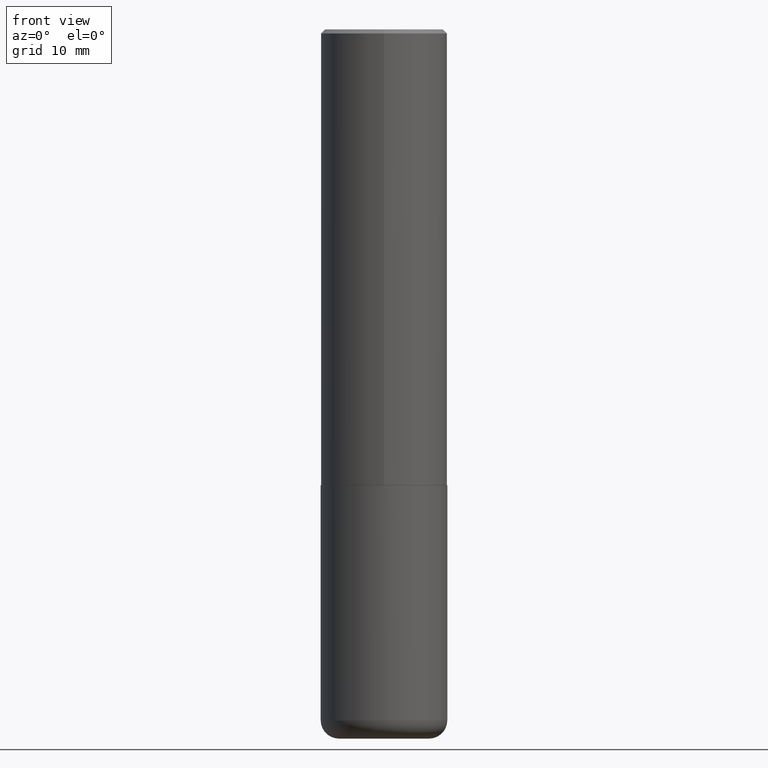
[diagram: clean part render]
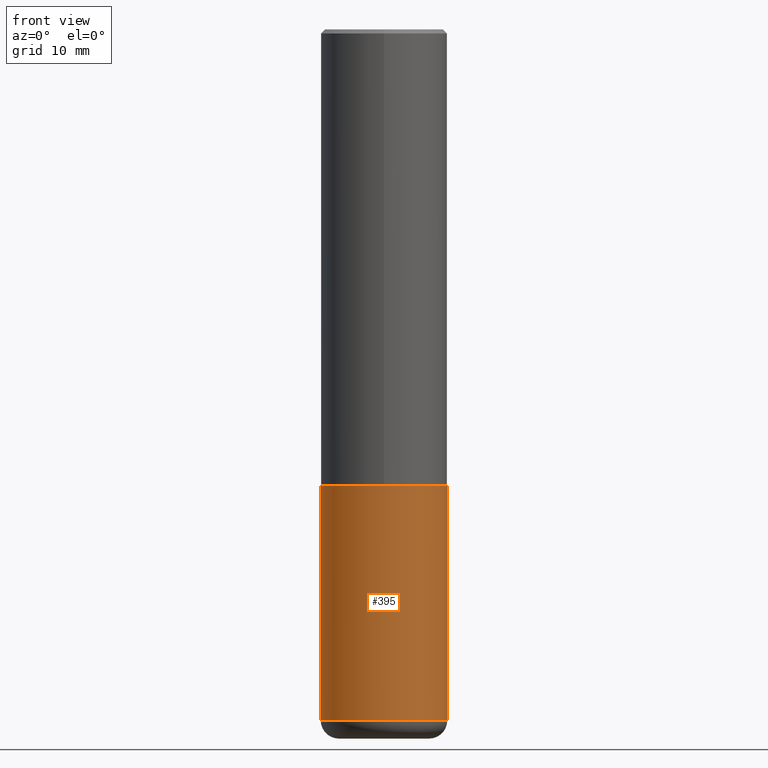
[diagram: same view with one face highlighted and labeled with its STEP entity id]
A machine part, front view. The second image highlights one B-rep face of the part: STEP entity #395.
In plain terms, the highlighted cylindrical surface (partial cylindrical patch) has radius 7.9375 mm, axis along (-0, 0, 1).
Its self-contained STEP definition (entity closure, byte-faithful):
#3 = CIRCLE ( 'NONE', #415, 0.3125000000000000000 ) ;
#7 = CARTESIAN_POINT ( 'NONE',  ( 0.3124999999999998890, -1.408812720223208442E-14, -3.410000000000000142 ) ) ;
#11 = AXIS2_PLACEMENT_3D ( 'NONE', #288, #283, #92 ) ;
#19 = FACE_OUTER_BOUND ( 'NONE', #335, .T. ) ;
#24 = VERTEX_POINT ( 'NONE', #235 ) ;
#69 = DIRECTION ( 'NONE',  ( 1.000000000000000000, -6.982962677686265133E-15, 0.000000000000000000 ) ) ;
#71 = CARTESIAN_POINT ( 'NONE',  ( 8.339048629091315302E-29, -1.190595136545512608E-14, -3.410000000000000142 ) ) ;
#79 = ORIENTED_EDGE ( 'NONE', *, *, #418, .F. ) ;
#82 = CIRCLE ( 'NONE', #317, 0.3125000000000000000 ) ;
#84 = CARTESIAN_POINT ( 'NONE',  ( -0.3125000000000000000, -7.660446139675788393E-15, -2.249999999999999556 ) ) ;
#92 = DIRECTION ( 'NONE',  ( 1.000000000000000000, -6.982962677686266711E-15, 4.876176775795936353E-29 ) ) ;
#114 = VERTEX_POINT ( 'NONE', #7 ) ;
#115 = EDGE_CURVE ( 'NONE', #114, #24, #261, .T. ) ;
#128 = CARTESIAN_POINT ( 'NONE',  ( -0.3125000000000000000, 2.220446049250313081E-15, -1.537167215704658232E-29 ) ) ;
#161 = EDGE_CURVE ( 'NONE', #344, #24, #82, .T. ) ;
#162 = VECTOR ( 'NONE', #343, 39.37007874015748143 ) ;
#176 = EDGE_CURVE ( 'NONE', #401, #114, #3, .T. ) ;
#202 = DIRECTION ( 'NONE',  ( -2.445468806185136597E-29, 3.491481338843145583E-15, 1.000000000000000000 ) ) ;
#208 = DIRECTION ( 'NONE',  ( -2.445468806185136877E-29, 3.491481338843145188E-15, 1.000000000000000000 ) ) ;
#229 = LINE ( 'NONE', #128, #162 ) ;
#235 = CARTESIAN_POINT ( 'NONE',  ( 0.3125000000000000000, -1.003800884917403364E-14, -2.249999999999999556 ) ) ;
#243 = ORIENTED_EDGE ( 'NONE', *, *, #161, .F. ) ;
#261 = LINE ( 'NONE', #391, #328 ) ;
#270 = DIRECTION ( 'NONE',  ( -2.445468806185136597E-29, 3.491481338843145583E-15, 1.000000000000000000 ) ) ;
#283 = DIRECTION ( 'NONE',  ( -2.445468806185136597E-29, 3.491481338843145583E-15, 1.000000000000000000 ) ) ;
#288 = CARTESIAN_POINT ( 'NONE',  ( 0.000000000000000000, 0.000000000000000000, 0.000000000000000000 ) ) ;
#307 = ORIENTED_EDGE ( 'NONE', *, *, #115, .T. ) ;
#317 = AXIS2_PLACEMENT_3D ( 'NONE', #351, #270, #69 ) ;
#320 = CARTESIAN_POINT ( 'NONE',  ( -0.3124999999999998890, -9.685505316204812997E-15, -3.410000000000000142 ) ) ;
#323 = DIRECTION ( 'NONE',  ( 1.000000000000000000, -6.982962677686269077E-15, 0.000000000000000000 ) ) ;
#328 = VECTOR ( 'NONE', #208, 39.37007874015748143 ) ;
#335 = EDGE_LOOP ( 'NONE', ( #79, #359, #307, #243 ) ) ;
#343 = DIRECTION ( 'NONE',  ( -2.445468806185136877E-29, 3.491481338843145188E-15, 1.000000000000000000 ) ) ;
#344 = VERTEX_POINT ( 'NONE', #84 ) ;
#351 = CARTESIAN_POINT ( 'NONE',  ( 5.502304813916556222E-29, -7.855833012397075293E-15, -2.249999999999999556 ) ) ;
#359 = ORIENTED_EDGE ( 'NONE', *, *, #176, .T. ) ;
#391 = CARTESIAN_POINT ( 'NONE',  ( 0.3125000000000000000, -2.182175836776958347E-15, 1.523805242436230075E-29 ) ) ;
#395 = ADVANCED_FACE ( 'NONE', ( #19 ), #406, .T. ) ;
#401 = VERTEX_POINT ( 'NONE', #320 ) ;
#406 = CYLINDRICAL_SURFACE ( 'NONE', #11, 0.3125000000000000000 ) ;
#415 = AXIS2_PLACEMENT_3D ( 'NONE', #71, #202, #323 ) ;
#418 = EDGE_CURVE ( 'NONE', #401, #344, #229, .T. ) ;